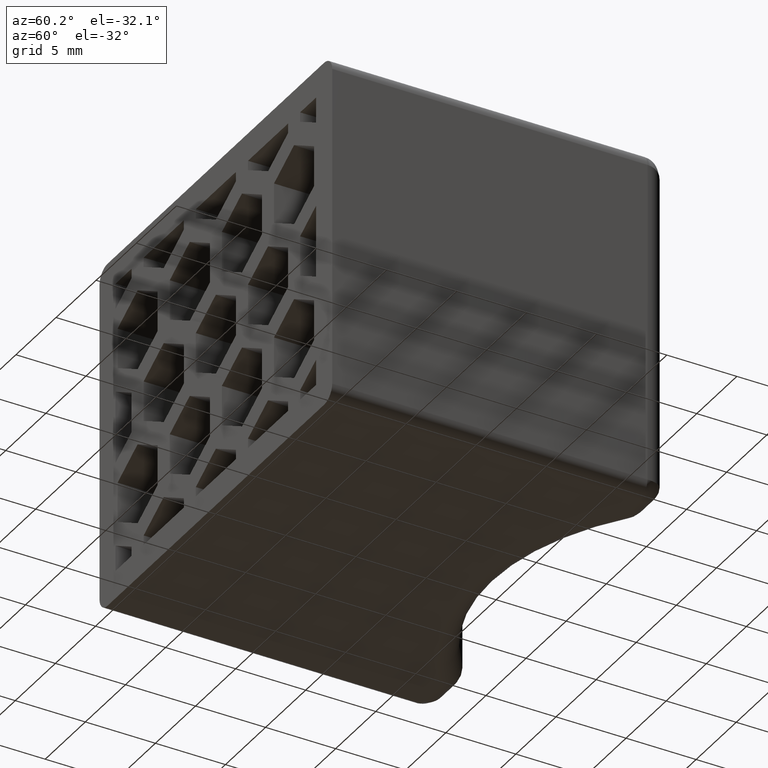
[diagram: clean part render]
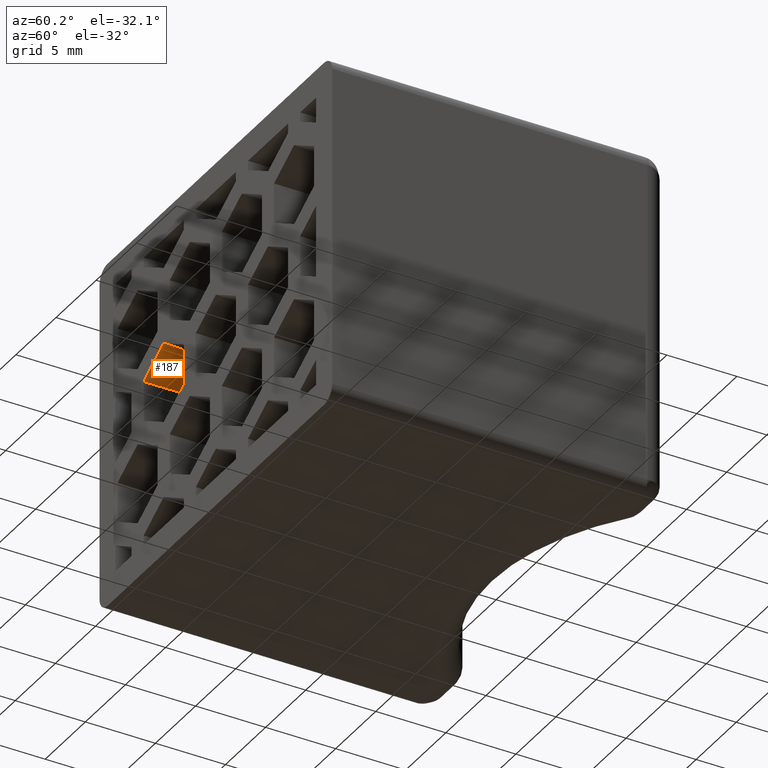
[diagram: same view with one face highlighted and labeled with its STEP entity id]
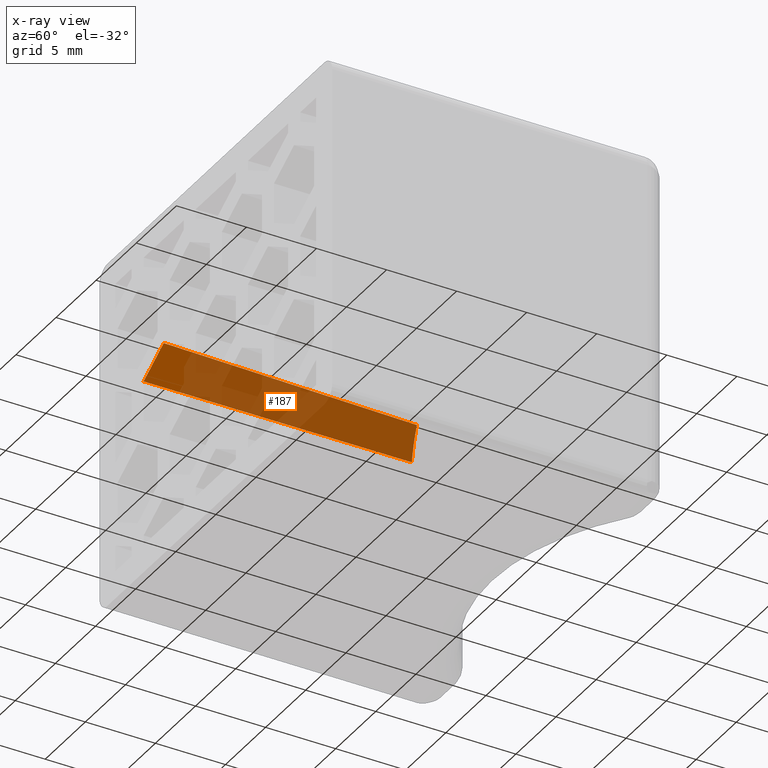
[diagram: x-ray of the same camera — body ghosted, the highlighted face saturated]
A machine part, auxiliary view. The second image highlights one B-rep face of the part: STEP entity #187.
The next image is the same camera in x-ray: the body ghosted, the highlighted face saturated — about 87% of this face is hidden behind the body in this view.
In plain terms, the highlighted planar face has unit normal (-0.4999, 0.0175, 0.8659).
Its self-contained STEP definition (entity closure, byte-faithful):
#187 = ADVANCED_FACE( '', ( #540 ), #541, .F. );
#540 = FACE_OUTER_BOUND( '', #1256, .T. );
#541 = PLANE( '', #1257 );
#1256 = EDGE_LOOP( '', ( #2665, #2666, #2667, #2668 ) );
#1257 = AXIS2_PLACEMENT_3D( '', #2669, #2670, #2671 );
#2665 = ORIENTED_EDGE( '', *, *, #3791, .T. );
#2666 = ORIENTED_EDGE( '', *, *, #3792, .T. );
#2667 = ORIENTED_EDGE( '', *, *, #3482, .T. );
#2668 = ORIENTED_EDGE( '', *, *, #3790, .F. );
#2669 = CARTESIAN_POINT( '', ( -0.374999999999998, -6.93889390390723E-015, 6.42302174473459 ) );
#2670 = DIRECTION( '', ( -0.499923847578195, 0.0174524064372835, 0.865893503920754 ) );
#2671 = DIRECTION( '', ( 0.866025403784439, 0.000000000000000, 0.500000000000000 ) );
#3482 = EDGE_CURVE( '', #4099, #4097, #4100, .T. );
#3790 = EDGE_CURVE( '', #4603, #4097, #4605, .T. );
#3791 = EDGE_CURVE( '', #4603, #4606, #4607, .T. );
#3792 = EDGE_CURVE( '', #4606, #4099, #4608, .T. );
#4097 = VERTEX_POINT( '', #5052 );
#4099 = VERTEX_POINT( '', #5055 );
#4100 = LINE( '', #5056, #5057 );
#4603 = VERTEX_POINT( '', #5785 );
#4605 = LINE( '', #5788, #5789 );
#4606 = VERTEX_POINT( '', #5790 );
#4607 = ELLIPSE( '', #5791, 23.3862477409846, 20.2500000000000 );
#4608 = LINE( '', #5792, #5793 );
#5052 = CARTESIAN_POINT( '', ( -9.00000000000000, -6.93889390390723E-015, 1.44337567297407 ) );
#5055 = CARTESIAN_POINT( '', ( -6.50000000000000, -6.93889390390723E-015, 2.88675134594813 ) );
#5056 = CARTESIAN_POINT( '', ( -5.25000000000000, -6.93889390390723E-015, 3.60843918243516 ) );
#5057 = VECTOR( '', #6140, 1000.00000000000 );
#5785 = CARTESIAN_POINT( '', ( -8.66923456602642, 18.9495390211281, 1.25240816063079 ) );
#5788 = CARTESIAN_POINT( '', ( -8.99824880547663, 0.100325867051769, 1.44236462034460 ) );
#5789 = VECTOR( '', #6610, 1000.00000000000 );
#5790 = CARTESIAN_POINT( '', ( -6.50000000000000, 18.0715615859893, 2.52251228383831 ) );
#5791 = AXIS2_PLACEMENT_3D( '', #6611, #6612, #6613 );
#5792 = CARTESIAN_POINT( '', ( -6.50000000000000, 0.0857858863196267, 2.88502229942237 ) );
#5793 = VECTOR( '', #6614, 1000.00000000000 );
#6140 = DIRECTION( '', ( -0.866025403784439, 0.000000000000000, -0.500000000000000 ) );
#6610 = DIRECTION( '', ( -0.0174515205435363, -0.999796942337605, 0.0100756400835790 ) );
#6611 = CARTESIAN_POINT( '', ( 0.000000000000000, 37.2500000000000, 5.88874045627105 ) );
#6612 = DIRECTION( '', ( -0.499923847578195, 0.0174524064372835, 0.865893503920754 ) );
#6613 = DIRECTION( '', ( 0.865366346075250, -0.0302100515148758, 0.500228387706894 ) );
#6614 = DIRECTION( '', ( 5.50935137850124E-018, -0.999796942337605, 0.0201512801671579 ) );